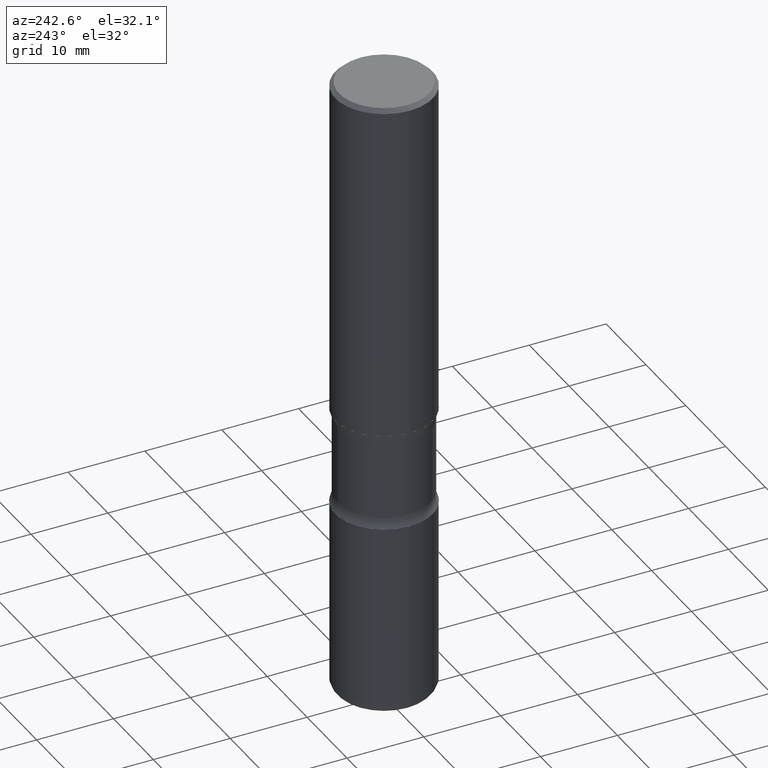
[diagram: clean part render]
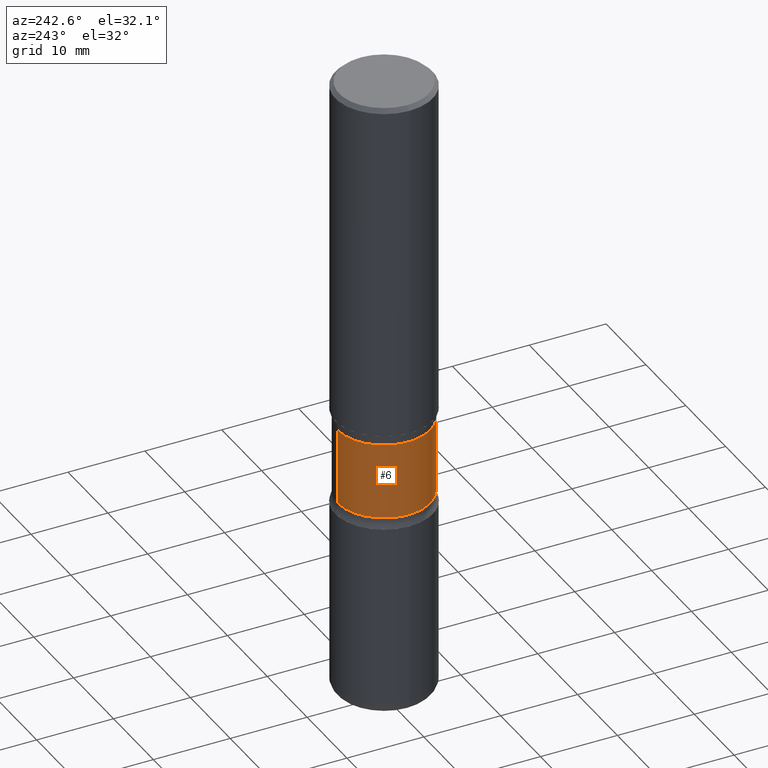
[diagram: same view with one face highlighted and labeled with its STEP entity id]
A machine part, auxiliary view. The second image highlights one B-rep face of the part: STEP entity #6.
In plain terms, the highlighted cylindrical surface (partial cylindrical patch) has radius 6.0325 mm, axis along (0, -0, -1).
Its self-contained STEP definition (entity closure, byte-faithful):
#6 = ADVANCED_FACE ( 'NONE', ( #40 ), #160, .T. ) ;
#10 = DIRECTION ( 'NONE',  ( 2.269921404058617848E-29, -3.742875210225950140E-15, -1.000000000000000000 ) ) ;
#16 = CARTESIAN_POINT ( 'NONE',  ( 1.658453635950563680E-15, 0.2374999999999881095, -3.250000000000002220 ) ) ;
#17 = VERTEX_POINT ( 'NONE', #242 ) ;
#30 = EDGE_CURVE ( 'NONE', #112, #68, #37, .T. ) ;
#37 = LINE ( 'NONE', #86, #217 ) ;
#40 = FACE_OUTER_BOUND ( 'NONE', #365, .T. ) ;
#68 = VERTEX_POINT ( 'NONE', #554 ) ;
#86 = CARTESIAN_POINT ( 'NONE',  ( -1.629368274470659150E-15, -0.2375000000000113409, -3.250000000000000000 ) ) ;
#112 = VERTEX_POINT ( 'NONE', #397 ) ;
#118 = CARTESIAN_POINT ( 'NONE',  ( 7.772226217975179114E-29, -1.159870822262303332E-14, -3.250000000000001332 ) ) ;
#119 = AXIS2_PLACEMENT_3D ( 'NONE', #469, #456, #303 ) ;
#160 = CYLINDRICAL_SURFACE ( 'NONE', #412, 0.2374999999999997113 ) ;
#190 = CIRCLE ( 'NONE', #404, 0.2374999999999995726 ) ;
#206 = DIRECTION ( 'NONE',  ( 6.982962677686266711E-15, 1.000000000000000000, -3.450755360418023049E-15 ) ) ;
#214 = CARTESIAN_POINT ( 'NONE',  ( 4.491023587013149728E-29, -6.188330592279845103E-15, -1.804486236794261567 ) ) ;
#215 = ORIENTED_EDGE ( 'NONE', *, *, #30, .F. ) ;
#217 = VECTOR ( 'NONE', #464, 39.37007874015748143 ) ;
#224 = VECTOR ( 'NONE', #10, 39.37007874015748143 ) ;
#229 = VERTEX_POINT ( 'NONE', #440 ) ;
#242 = CARTESIAN_POINT ( 'NONE',  ( 1.658453635950530153E-15, 0.2374999999999934108, -1.804486236794262233 ) ) ;
#245 = DIRECTION ( 'NONE',  ( 6.982962677686265922E-15, 1.000000000000000000, -4.601007147224027577E-15 ) ) ;
#249 = EDGE_CURVE ( 'NONE', #17, #229, #400, .T. ) ;
#289 = EDGE_CURVE ( 'NONE', #112, #17, #190, .T. ) ;
#303 = DIRECTION ( 'NONE',  ( 6.982962677686265133E-15, 1.000000000000000000, -3.450755360418019105E-15 ) ) ;
#320 = ORIENTED_EDGE ( 'NONE', *, *, #249, .T. ) ;
#338 = DIRECTION ( 'NONE',  ( 2.269921404058617848E-29, -3.742875210225950140E-15, -1.000000000000000000 ) ) ;
#348 = EDGE_CURVE ( 'NONE', #68, #229, #350, .T. ) ;
#350 = CIRCLE ( 'NONE', #119, 0.2374999999999998224 ) ;
#365 = EDGE_LOOP ( 'NONE', ( #215, #484, #320, #524 ) ) ;
#397 = CARTESIAN_POINT ( 'NONE',  ( -1.672246386956765893E-15, -0.2375000000000057621, -1.804486236794260678 ) ) ;
#400 = LINE ( 'NONE', #16, #224 ) ;
#404 = AXIS2_PLACEMENT_3D ( 'NONE', #214, #550, #206 ) ;
#412 = AXIS2_PLACEMENT_3D ( 'NONE', #118, #338, #245 ) ;
#440 = CARTESIAN_POINT ( 'NONE',  ( 1.658453635950540606E-15, 0.2374999999999921618, -2.195513763205742208 ) ) ;
#456 = DIRECTION ( 'NONE',  ( 2.269921404058617848E-29, -3.742875210225950140E-15, -1.000000000000000000 ) ) ;
#464 = DIRECTION ( 'NONE',  ( 2.269921404058617848E-29, -3.742875210225950140E-15, -1.000000000000000000 ) ) ;
#469 = CARTESIAN_POINT ( 'NONE',  ( 5.378625338790664161E-29, -7.651897827401345401E-15, -2.195513763205741320 ) ) ;
#484 = ORIENTED_EDGE ( 'NONE', *, *, #289, .T. ) ;
#524 = ORIENTED_EDGE ( 'NONE', *, *, #348, .F. ) ;
#550 = DIRECTION ( 'NONE',  ( 2.269921404058617848E-29, -3.742875210225950140E-15, -1.000000000000000000 ) ) ;
#554 = CARTESIAN_POINT ( 'NONE',  ( -1.672246386956757412E-15, -0.2375000000000074829, -2.195513763205740432 ) ) ;